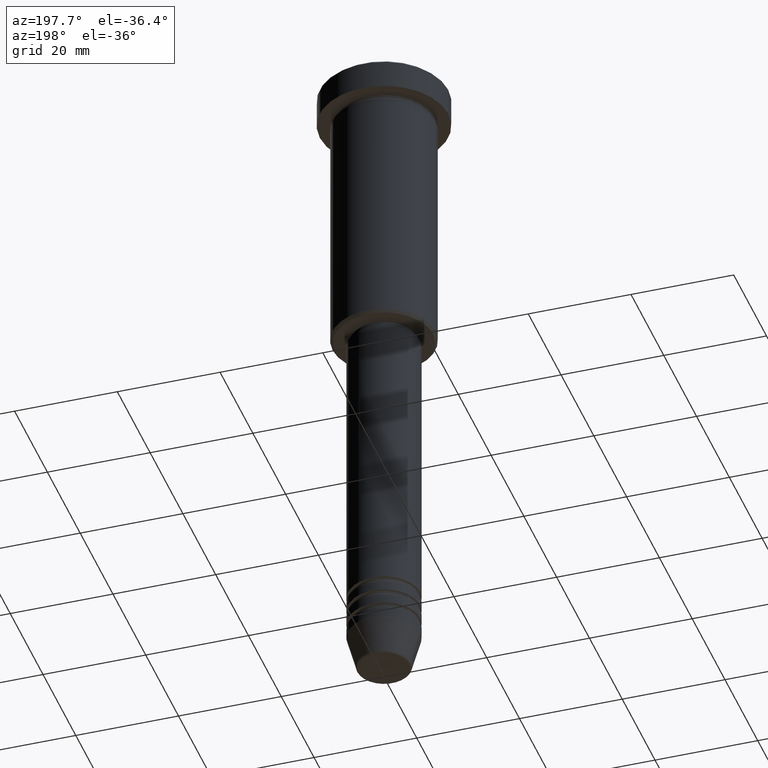
[diagram: clean part render]
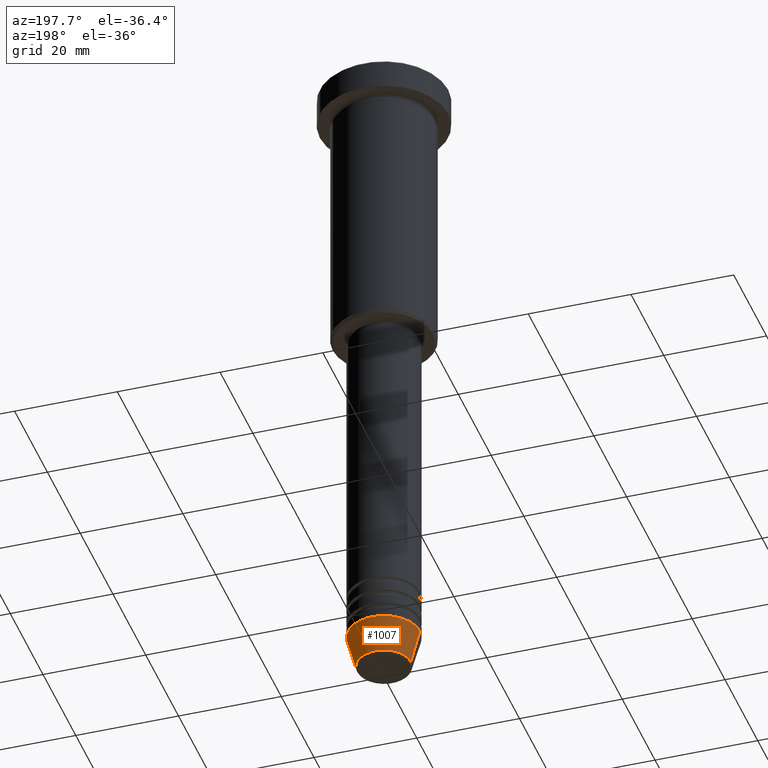
[diagram: same view with one face highlighted and labeled with its STEP entity id]
A machine part, auxiliary view. The second image highlights one B-rep face of the part: STEP entity #1007.
In plain terms, the highlighted conical surface has half-angle 15 deg.
Its self-contained STEP definition (entity closure, byte-faithful):
#22 = VERTEX_POINT ( 'NONE', #1041 ) ;
#24 = EDGE_CURVE ( 'NONE', #485, #194, #336, .T. ) ;
#43 = DIRECTION ( 'NONE',  ( -0.000000000000000000, -0.000000000000000000, 1.000000000000000000 ) ) ;
#64 = CIRCLE ( 'NONE', #180, 5.223655072137191269 ) ;
#72 = DIRECTION ( 'NONE',  ( 0.2588190451025214056, 0.000000000000000000, 0.9659258262890680902 ) ) ;
#76 = EDGE_CURVE ( 'NONE', #194, #22, #335, .T. ) ;
#88 = VECTOR ( 'NONE', #862, 1000.000000000000000 ) ;
#133 = ORIENTED_EDGE ( 'NONE', *, *, #807, .T. ) ;
#173 = CARTESIAN_POINT ( 'NONE',  ( 0.000000000000000000, 0.000000000000000000, -124.0000000000000000 ) ) ;
#178 = VERTEX_POINT ( 'NONE', #421 ) ;
#180 = AXIS2_PLACEMENT_3D ( 'NONE', #1057, #43, #974 ) ;
#186 = AXIS2_PLACEMENT_3D ( 'NONE', #624, #1066, #785 ) ;
#194 = VERTEX_POINT ( 'NONE', #1150 ) ;
#196 = CONICAL_SURFACE ( 'NONE', #602, 7.000000000000000000, 0.2617993877991501295 ) ;
#262 = ORIENTED_EDGE ( 'NONE', *, *, #901, .T. ) ;
#306 = CARTESIAN_POINT ( 'NONE',  ( -7.000000000000000000, 8.572527594031473190E-16, -124.0000000000000000 ) ) ;
#335 = CIRCLE ( 'NONE', #186, 7.000000000000000000 ) ;
#336 = LINE ( 'NONE', #617, #518 ) ;
#351 = DIRECTION ( 'NONE',  ( -0.000000000000000000, -0.000000000000000000, 1.000000000000000000 ) ) ;
#421 = CARTESIAN_POINT ( 'NONE',  ( -5.223655072137191269, 7.484830028987061160E-16, -130.6294095225512422 ) ) ;
#485 = VERTEX_POINT ( 'NONE', #906 ) ;
#518 = VECTOR ( 'NONE', #72, 1000.000000000000000 ) ;
#602 = AXIS2_PLACEMENT_3D ( 'NONE', #173, #351, #615 ) ;
#614 = ORIENTED_EDGE ( 'NONE', *, *, #76, .F. ) ;
#615 = DIRECTION ( 'NONE',  ( 1.000000000000000000, 0.000000000000000000, 0.000000000000000000 ) ) ;
#617 = CARTESIAN_POINT ( 'NONE',  ( 7.000000000000000000, 0.000000000000000000, -124.0000000000000000 ) ) ;
#624 = CARTESIAN_POINT ( 'NONE',  ( 0.000000000000000000, 0.000000000000000000, -124.0000000000000000 ) ) ;
#782 = LINE ( 'NONE', #306, #88 ) ;
#784 = ORIENTED_EDGE ( 'NONE', *, *, #24, .F. ) ;
#785 = DIRECTION ( 'NONE',  ( 1.000000000000000000, 0.000000000000000000, 0.000000000000000000 ) ) ;
#807 = EDGE_CURVE ( 'NONE', #178, #22, #782, .T. ) ;
#862 = DIRECTION ( 'NONE',  ( -0.2588190451025214056, 3.169619151431772953E-17, 0.9659258262890680902 ) ) ;
#901 = EDGE_CURVE ( 'NONE', #485, #178, #64, .T. ) ;
#906 = CARTESIAN_POINT ( 'NONE',  ( 5.223655072137191269, 0.000000000000000000, -130.6294095225512422 ) ) ;
#974 = DIRECTION ( 'NONE',  ( 1.000000000000000000, 0.000000000000000000, 0.000000000000000000 ) ) ;
#993 = EDGE_LOOP ( 'NONE', ( #262, #133, #614, #784 ) ) ;
#1007 = ADVANCED_FACE ( 'NONE', ( #1086 ), #196, .T. ) ;
#1041 = CARTESIAN_POINT ( 'NONE',  ( -7.000000000000000000, 8.572527594031473190E-16, -124.0000000000000000 ) ) ;
#1057 = CARTESIAN_POINT ( 'NONE',  ( 0.000000000000000000, 0.000000000000000000, -130.6294095225512422 ) ) ;
#1066 = DIRECTION ( 'NONE',  ( -0.000000000000000000, -0.000000000000000000, 1.000000000000000000 ) ) ;
#1086 = FACE_OUTER_BOUND ( 'NONE', #993, .T. ) ;
#1150 = CARTESIAN_POINT ( 'NONE',  ( 7.000000000000000000, 0.000000000000000000, -124.0000000000000000 ) ) ;